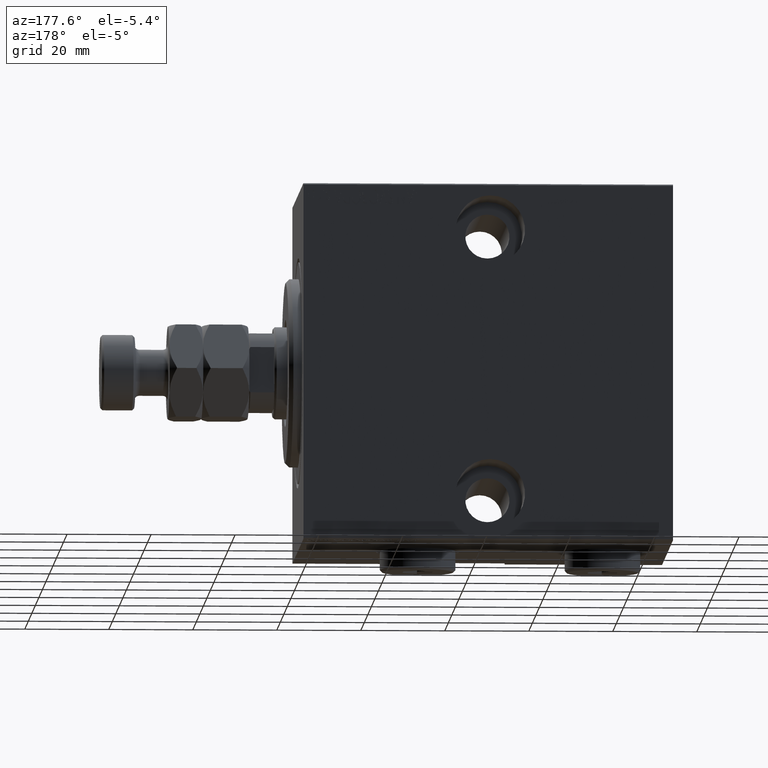
[diagram: clean part render]
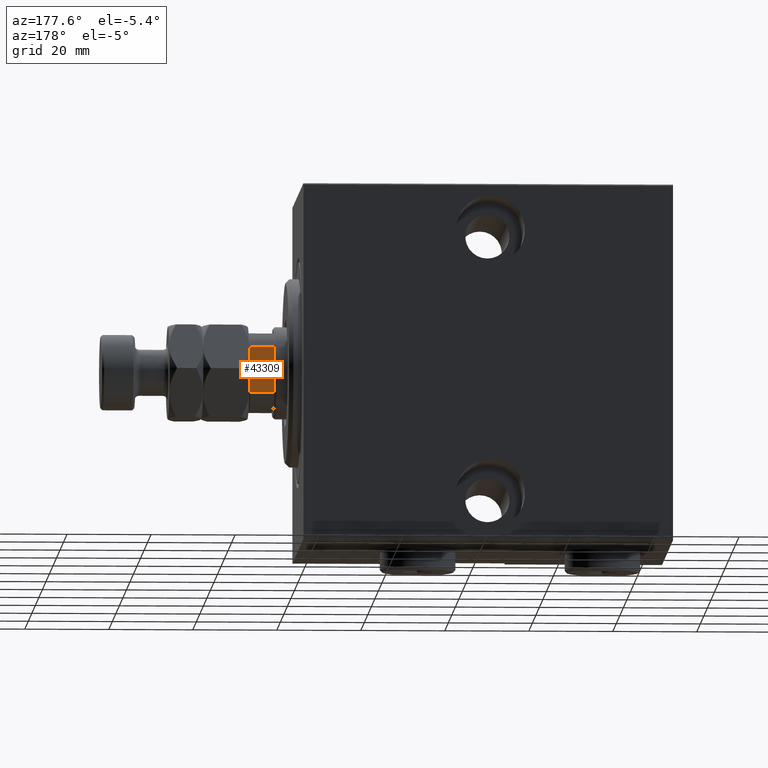
[diagram: same view with one face highlighted and labeled with its STEP entity id]
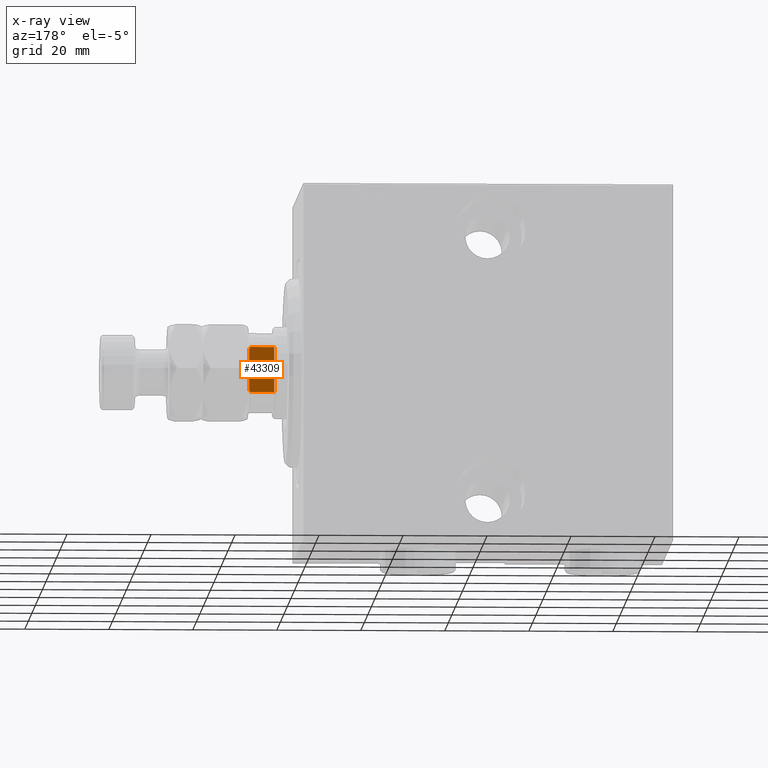
[diagram: x-ray of the same camera — body ghosted, the highlighted face saturated]
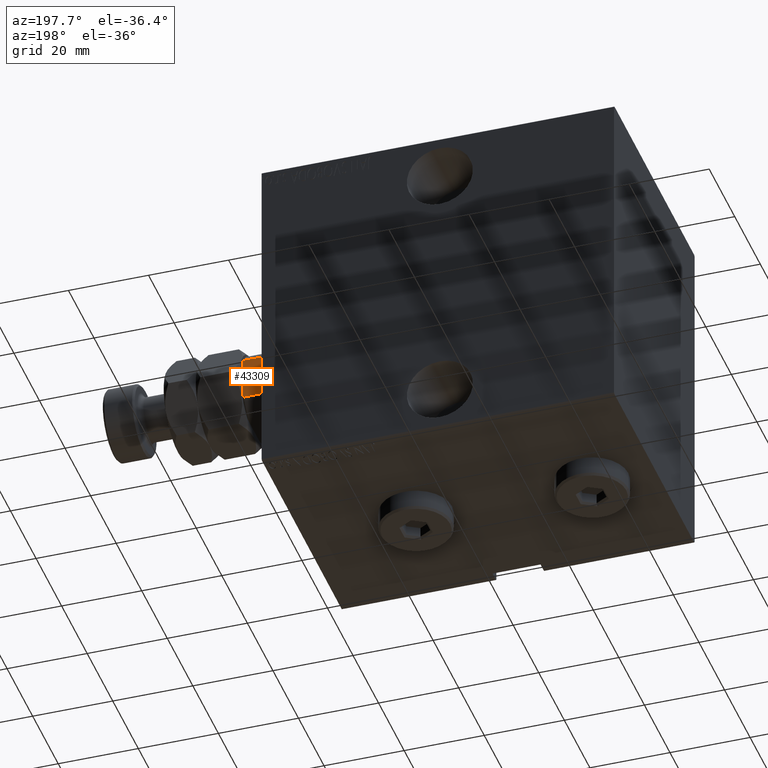
[diagram: same view with one face highlighted and labeled with its STEP entity id]
A machine part, auxiliary view. The second image highlights one B-rep face of the part: STEP entity #43309.
The next image is the same camera in x-ray: the body ghosted, the highlighted face saturated — about 0% of this face is hidden behind the body in this view.
A second angle (auxiliary view) of the same face is appended — the face is thin or edge-on in the first view.
In plain terms, the highlighted planar face has unit normal (0, -1, -0).
Its self-contained STEP definition (entity closure, byte-faithful):
#851 = CARTESIAN_POINT ( 'NONE',  ( 5.408326913195989682, 8.999999999999998224, -0.001000000000001000089 ) ) ;
#1129 = VERTEX_POINT ( 'NONE', #24728 ) ;
#2632 = VECTOR ( 'NONE', #36612, 1000.000000000000000 ) ;
#3360 = CARTESIAN_POINT ( 'NONE',  ( 5.207299490555468147, 8.999999999999998224, 87.80354495430066208 ) ) ;
#3522 = ORIENTED_EDGE ( 'NONE', *, *, #24708, .F. ) ;
#3603 = VECTOR ( 'NONE', #26007, 1000.000000000000000 ) ;
#4616 = CARTESIAN_POINT ( 'NONE',  ( -9.000000000000001776, 8.999999999999998224, 88.00000000000000000 ) ) ;
#4987 = ORIENTED_EDGE ( 'NONE', *, *, #17977, .T. ) ;
#6497 = ORIENTED_EDGE ( 'NONE', *, *, #25440, .T. ) ;
#7163 = EDGE_CURVE ( 'NONE', #1129, #7829, #43112, .T. ) ;
#7829 = VERTEX_POINT ( 'NONE', #27695 ) ;
#8779 = CARTESIAN_POINT ( 'NONE',  ( 5.408326913195989682, 8.999999999999998224, 87.69999999999997442 ) ) ;
#9903 = CARTESIAN_POINT ( 'NONE',  ( -4.800000000000012257, 8.999999999999998224, 88.00000000000000000 ) ) ;
#11440 = CARTESIAN_POINT ( 'NONE',  ( -5.408326913195988794, 8.999999999999998224, -0.001000000000001000089 ) ) ;
#11877 = CARTESIAN_POINT ( 'NONE',  ( 5.408326913195989682, 8.999999999999998224, 81.99999999999997158 ) ) ;
#12407 = EDGE_CURVE ( 'NONE', #38210, #1129, #17745, .T. ) ;
#13127 = CARTESIAN_POINT ( 'NONE',  ( -5.408326913195988794, 8.999999999999998224, 87.70000000000000284 ) ) ;
#13285 = DIRECTION ( 'NONE',  ( 0.000000000000000000, -1.000000000000000000, 0.000000000000000000 ) ) ;
#16071 = CARTESIAN_POINT ( 'NONE',  ( -9.000000000000001776, 8.999999999999998224, 88.00000000000000000 ) ) ;
#17620 = ORIENTED_EDGE ( 'NONE', *, *, #12407, .T. ) ;
#17745 = LINE ( 'NONE', #35092, #26235 ) ;
#17977 = EDGE_CURVE ( 'NONE', #24311, #39847, #40144, .T. ) ;
#18691 = DIRECTION ( 'NONE',  ( -1.000000000000000000, -0.000000000000000000, -0.000000000000000000 ) ) ;
#18840 = EDGE_CURVE ( 'NONE', #24311, #41650, #25853, .T. ) ;
#18850 = LINE ( 'NONE', #851, #3603 ) ;
#19993 = DIRECTION ( 'NONE',  ( 0.000000000000000000, -0.000000000000000000, -1.000000000000000000 ) ) ;
#20372 = CARTESIAN_POINT ( 'NONE',  ( -4.800000000000012257, 8.999999999999998224, 88.00000000000000000 ) ) ;
#21359 = CARTESIAN_POINT ( 'NONE',  ( 4.799999999999979394, 8.999999999999998224, 88.00000000000000000 ) ) ;
#24214 = VECTOR ( 'NONE', #18691, 1000.000000000000000 ) ;
#24311 = VERTEX_POINT ( 'NONE', #43195 ) ;
#24708 = EDGE_CURVE ( 'NONE', #38210, #39847, #18850, .T. ) ;
#24728 = CARTESIAN_POINT ( 'NONE',  ( -5.408326913195987018, 8.999999999999998224, 81.99999999999997158 ) ) ;
#24823 = CARTESIAN_POINT ( 'NONE',  ( 5.408326913195989682, 8.999999999999998224, 87.69999999999997442 ) ) ;
#25357 = DIRECTION ( 'NONE',  ( -1.000000000000000000, -0.000000000000000000, -0.000000000000000000 ) ) ;
#25440 = EDGE_CURVE ( 'NONE', #7829, #41650, #40641, .T. ) ;
#25853 = LINE ( 'NONE', #4616, #24214 ) ;
#26007 = DIRECTION ( 'NONE',  ( -0.000000000000000000, -0.000000000000000000, 1.000000000000000000 ) ) ;
#26235 = VECTOR ( 'NONE', #25357, 1000.000000000000000 ) ;
#26834 = EDGE_LOOP ( 'NONE', ( #39109, #4987, #3522, #17620, #45687, #6497 ) ) ;
#27217 = CARTESIAN_POINT ( 'NONE',  ( -5.207299490555478805, 8.999999999999998224, 87.80354495430067630 ) ) ;
#27695 = CARTESIAN_POINT ( 'NONE',  ( -5.408326913195988794, 8.999999999999998224, 87.70000000000000284 ) ) ;
#33374 = AXIS2_PLACEMENT_3D ( 'NONE', #16071, #13285, #19993 ) ;
#35007 = CARTESIAN_POINT ( 'NONE',  ( 5.004607318780289305, 8.999999999999998224, 87.90371420292690630 ) ) ;
#35092 = CARTESIAN_POINT ( 'NONE',  ( -9.000000000000001776, 8.999999999999998224, 81.99999999999998579 ) ) ;
#36612 = DIRECTION ( 'NONE',  ( -0.000000000000000000, -0.000000000000000000, 1.000000000000000000 ) ) ;
#37334 = PLANE ( 'NONE',  #33374 ) ;
#37781 = FACE_OUTER_BOUND ( 'NONE', #26834, .T. ) ;
#38210 = VERTEX_POINT ( 'NONE', #11877 ) ;
#39109 = ORIENTED_EDGE ( 'NONE', *, *, #18840, .F. ) ;
#39847 = VERTEX_POINT ( 'NONE', #8779 ) ;
#40144 = B_SPLINE_CURVE_WITH_KNOTS ( 'NONE', 3,
 ( #21359, #35007, #3360, #24823 ),
 .UNSPECIFIED., .F., .F.,
 ( 4, 4 ),
 ( 0.000000000000000000, 0.0006782784334759580768 ),
 .UNSPECIFIED. ) ;
#40641 = B_SPLINE_CURVE_WITH_KNOTS ( 'NONE', 3,
 ( #13127, #27217, #41333, #9903 ),
 .UNSPECIFIED., .F., .F.,
 ( 4, 4 ),
 ( 0.000000000000000000, 0.0006782784334759147087 ),
 .UNSPECIFIED. ) ;
#41333 = CARTESIAN_POINT ( 'NONE',  ( -5.004607318780315062, 8.999999999999998224, 87.90371420292692051 ) ) ;
#41650 = VERTEX_POINT ( 'NONE', #20372 ) ;
#43112 = LINE ( 'NONE', #11440, #2632 ) ;
#43195 = CARTESIAN_POINT ( 'NONE',  ( 4.799999999999979394, 8.999999999999998224, 88.00000000000000000 ) ) ;
#43309 = ADVANCED_FACE ( 'NONE', ( #37781 ), #37334, .F. ) ;
#45687 = ORIENTED_EDGE ( 'NONE', *, *, #7163, .T. ) ;